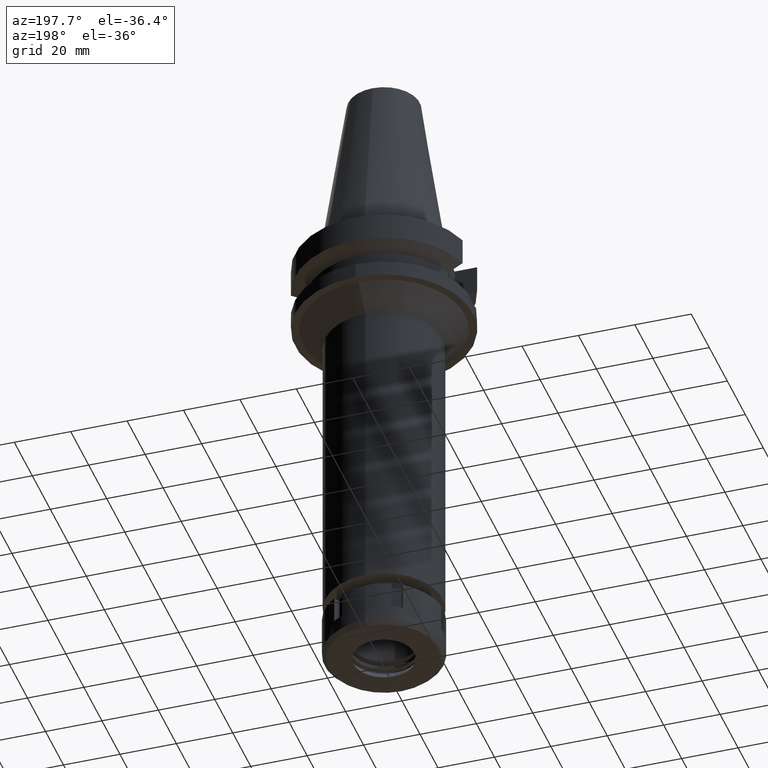
[diagram: clean part render]
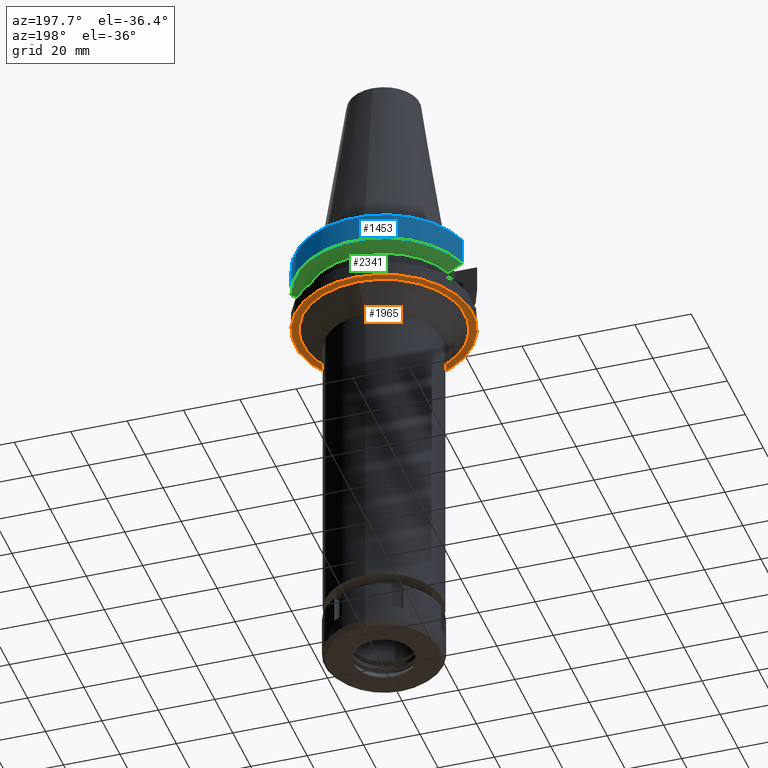
[diagram: same view with three faces highlighted in distinct colors, each labeled with its STEP entity id]
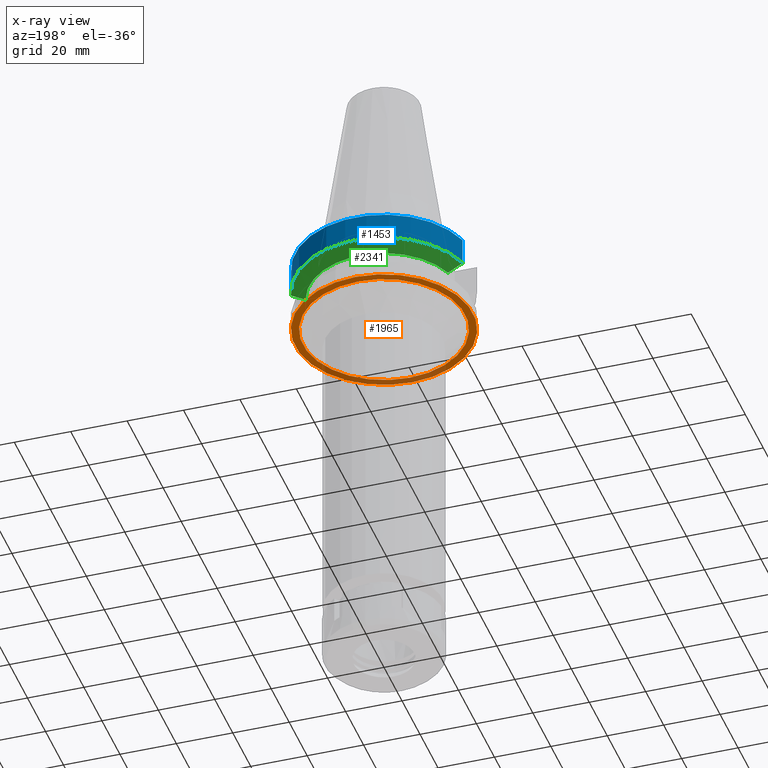
[diagram: x-ray of the same camera — body ghosted, the three highlighted faces saturated]
A machine part, auxiliary view with three faces highlighted in distinct colors.
The next image is the same camera in x-ray (body ghosted, the three faces saturated) — at least one of them is partly hidden behind the body in this view.
Their STEP definitions:

[orange] entity #1965 — the highlighted planar face has unit normal (0, 0, -1).
#101 = FACE_OUTER_BOUND ( 'NONE', #862, .T. ) ;
#291 = DIRECTION ( 'NONE',  ( 0.0000000000000000000, 1.000000000000000000, 0.0000000000000000000 ) ) ;
#306 = DIRECTION ( 'NONE',  ( 0.0000000000000000000, 0.0000000000000000000, -1.000000000000000000 ) ) ;
#309 = FACE_BOUND ( 'NONE', #562, .T. ) ;
#340 = AXIS2_PLACEMENT_3D ( 'NONE', #3331, #810, #1930 ) ;
#356 = EDGE_CURVE ( 'NONE', #2989, #950, #1204, .T. ) ;
#392 = CARTESIAN_POINT ( 'NONE',  ( 0.0000000000000000000, -28.75000000000000000, -27.00000000000000000 ) ) ;
#562 = EDGE_LOOP ( 'NONE', ( #3246, #3586 ) ) ;
#578 = VERTEX_POINT ( 'NONE', #2393 ) ;
#664 = EDGE_CURVE ( 'NONE', #947, #578, #2742, .T. ) ;
#810 = DIRECTION ( 'NONE',  ( 0.0000000000000000000, 0.0000000000000000000, 1.000000000000000000 ) ) ;
#862 = EDGE_LOOP ( 'NONE', ( #3364, #2735 ) ) ;
#947 = VERTEX_POINT ( 'NONE', #2908 ) ;
#950 = VERTEX_POINT ( 'NONE', #392 ) ;
#1003 = DIRECTION ( 'NONE',  ( 0.0000000000000000000, 0.0000000000000000000, 1.000000000000000000 ) ) ;
#1204 = CIRCLE ( 'NONE', #3266, 28.75000000000000000 ) ;
#1423 = CARTESIAN_POINT ( 'NONE',  ( 0.0000000000000000000, 0.0000000000000000000, -27.00000000000000000 ) ) ;
#1545 = CARTESIAN_POINT ( 'NONE',  ( 0.0000000000000000000, 2.161746529854999700E-14, -27.00000000000000000 ) ) ;
#1614 = EDGE_CURVE ( 'NONE', #950, #2989, #3337, .T. ) ;
#1681 = CARTESIAN_POINT ( 'NONE',  ( 0.0000000000000000000, 0.0000000000000000000, -27.00000000000000000 ) ) ;
#1743 = CIRCLE ( 'NONE', #340, 31.50000000000000000 ) ;
#1754 = EDGE_CURVE ( 'NONE', #578, #947, #1743, .T. ) ;
#1826 = CARTESIAN_POINT ( 'NONE',  ( 0.0000000000000000000, 28.75000000000000000, -27.00000000000000000 ) ) ;
#1925 = AXIS2_PLACEMENT_3D ( 'NONE', #2437, #3577, #2168 ) ;
#1930 = DIRECTION ( 'NONE',  ( 0.0000000000000000000, -1.000000000000000000, 0.0000000000000000000 ) ) ;
#1965 = ADVANCED_FACE ( 'NONE', ( #101, #309 ), #2846, .T. ) ;
#2168 = DIRECTION ( 'NONE',  ( 0.0000000000000000000, -1.000000000000000000, 0.0000000000000000000 ) ) ;
#2393 = CARTESIAN_POINT ( 'NONE',  ( 0.0000000000000000000, -31.50000000000000000, -27.00000000000000000 ) ) ;
#2437 = CARTESIAN_POINT ( 'NONE',  ( 0.0000000000000000000, 0.0000000000000000000, -27.00000000000000000 ) ) ;
#2448 = AXIS2_PLACEMENT_3D ( 'NONE', #1423, #2919, #3193 ) ;
#2735 = ORIENTED_EDGE ( 'NONE', *, *, #1754, .F. ) ;
#2742 = CIRCLE ( 'NONE', #3448, 31.50000000000000000 ) ;
#2846 = PLANE ( 'NONE',  #2448 ) ;
#2908 = CARTESIAN_POINT ( 'NONE',  ( 0.0000000000000000000, 31.50000000000000000, -27.00000000000000000 ) ) ;
#2919 = DIRECTION ( 'NONE',  ( 0.0000000000000000000, 0.0000000000000000000, -1.000000000000000000 ) ) ;
#2989 = VERTEX_POINT ( 'NONE', #1826 ) ;
#3193 = DIRECTION ( 'NONE',  ( 0.0000000000000000000, -1.000000000000000000, 0.0000000000000000000 ) ) ;
#3246 = ORIENTED_EDGE ( 'NONE', *, *, #356, .F. ) ;
#3266 = AXIS2_PLACEMENT_3D ( 'NONE', #1681, #306, #291 ) ;
#3331 = CARTESIAN_POINT ( 'NONE',  ( 0.0000000000000000000, 2.161746529854999700E-14, -27.00000000000000000 ) ) ;
#3337 = CIRCLE ( 'NONE', #1925, 28.75000000000000000 ) ;
#3364 = ORIENTED_EDGE ( 'NONE', *, *, #664, .F. ) ;
#3448 = AXIS2_PLACEMENT_3D ( 'NONE', #1545, #1003, #3549 ) ;
#3549 = DIRECTION ( 'NONE',  ( 0.0000000000000000000, 1.000000000000000000, 0.0000000000000000000 ) ) ;
#3577 = DIRECTION ( 'NONE',  ( 0.0000000000000000000, 0.0000000000000000000, -1.000000000000000000 ) ) ;
#3586 = ORIENTED_EDGE ( 'NONE', *, *, #1614, .F. ) ;

[blue] entity #1453 — the highlighted cylindrical surface (partial cylindrical patch) has radius 31.5 mm, axis along (0, 0, -1).
#1 = ORIENTED_EDGE ( 'NONE', *, *, #2590, .T. ) ;
#63 = CARTESIAN_POINT ( 'NONE',  ( 30.45402291365999758, 8.049999277899999583, -11.56551215646999964 ) ) ;
#125 = CARTESIAN_POINT ( 'NONE',  ( 30.45402291365999758, 8.049999277899999583, -11.56551215646999964 ) ) ;
#194 = DIRECTION ( 'NONE',  ( 0.0000000000000000000, 1.000000000000000000, 0.0000000000000000000 ) ) ;
#369 = CYLINDRICAL_SURFACE ( 'NONE', #2918, 31.50000000000000000 ) ;
#468 = CARTESIAN_POINT ( 'NONE',  ( 30.45402272279000044, 8.050000000000000711, -2.000000000000000000 ) ) ;
#506 = VECTOR ( 'NONE', #509, 999.9999999999998863 ) ;
#509 = DIRECTION ( 'NONE',  ( 1.145009674538999559E-07, 4.331689861748997914E-07, -0.9999999999998997469 ) ) ;
#655 = VERTEX_POINT ( 'NONE', #746 ) ;
#746 = CARTESIAN_POINT ( 'NONE',  ( -30.45402162752999686, 8.050004143464001061, -11.56546833011000075 ) ) ;
#837 = VERTEX_POINT ( 'NONE', #2930 ) ;
#941 = DIRECTION ( 'NONE',  ( 0.0000000000000000000, -1.000000000000000000, 0.0000000000000000000 ) ) ;
#998 = VERTEX_POINT ( 'NONE', #125 ) ;
#1020 = VERTEX_POINT ( 'NONE', #468 ) ;
#1266 = VECTOR ( 'NONE', #2303, 1000.000000000000227 ) ;
#1431 = EDGE_CURVE ( 'NONE', #998, #1020, #1466, .T. ) ;
#1453 = ADVANCED_FACE ( 'NONE', ( #1761 ), #369, .T. ) ;
#1466 = LINE ( 'NONE', #63, #1266 ) ;
#1582 = EDGE_CURVE ( 'NONE', #998, #655, #1628, .T. ) ;
#1628 = CIRCLE ( 'NONE', #3640, 31.50000000000000000 ) ;
#1761 = FACE_OUTER_BOUND ( 'NONE', #2065, .T. ) ;
#1864 = ORIENTED_EDGE ( 'NONE', *, *, #1431, .F. ) ;
#1870 = DIRECTION ( 'NONE',  ( 0.0000000000000000000, 0.0000000000000000000, -1.000000000000000000 ) ) ;
#2020 = CIRCLE ( 'NONE', #3382, 31.50000000000000000 ) ;
#2065 = EDGE_LOOP ( 'NONE', ( #2266, #1, #1864, #3565 ) ) ;
#2181 = CARTESIAN_POINT ( 'NONE',  ( 0.0000000000000000000, 2.161746529854999700E-14, -2.000000000000000000 ) ) ;
#2266 = ORIENTED_EDGE ( 'NONE', *, *, #3007, .F. ) ;
#2303 = DIRECTION ( 'NONE',  ( -1.995440244981989097E-08, 7.548993092068956305E-08, 0.9999999999999968914 ) ) ;
#2328 = CARTESIAN_POINT ( 'NONE',  ( 0.0000000000000000000, 2.161746529854999700E-14, 76.52000000000001023 ) ) ;
#2382 = DIRECTION ( 'NONE',  ( 0.0000000000000000000, 1.000000000000000000, 0.0000000000000000000 ) ) ;
#2590 = EDGE_CURVE ( 'NONE', #837, #1020, #2020, .T. ) ;
#2642 = CARTESIAN_POINT ( 'NONE',  ( 0.0000000000000000000, 1.065333950388000029E-14, -11.56550565266999975 ) ) ;
#2918 = AXIS2_PLACEMENT_3D ( 'NONE', #2328, #3464, #941 ) ;
#2930 = CARTESIAN_POINT ( 'NONE',  ( -30.45402272279000044, 8.050000000000000711, -2.000000000000000000 ) ) ;
#2944 = DIRECTION ( 'NONE',  ( 0.0000000000000000000, 0.0000000000000000000, 1.000000000000000000 ) ) ;
#3007 = EDGE_CURVE ( 'NONE', #837, #655, #3263, .T. ) ;
#3263 = LINE ( 'NONE', #3303, #506 ) ;
#3303 = CARTESIAN_POINT ( 'NONE',  ( -30.45402272279000044, 8.050000000000000711, -2.000000000000000000 ) ) ;
#3382 = AXIS2_PLACEMENT_3D ( 'NONE', #2181, #1870, #194 ) ;
#3464 = DIRECTION ( 'NONE',  ( 0.0000000000000000000, 0.0000000000000000000, -1.000000000000000000 ) ) ;
#3565 = ORIENTED_EDGE ( 'NONE', *, *, #1582, .T. ) ;
#3640 = AXIS2_PLACEMENT_3D ( 'NONE', #2642, #2944, #2382 ) ;

[green] entity #2341 — the highlighted conical surface has half-angle 60 deg.
#4 = EDGE_CURVE ( 'NONE', #3484, #2160, #743, .T. ) ;
#55 = B_SPLINE_CURVE_WITH_KNOTS ( 'NONE', 3,
 ( #3396, #3116, #317, #1432 ),
 .UNSPECIFIED., .F., .F.,
 ( 4, 4 ),
 ( 0.0000000000000000000, 1.000000000000000000 ),
 .UNSPECIFIED. ) ;
#125 = CARTESIAN_POINT ( 'NONE',  ( 30.45402291365999758, 8.049999277899999583, -11.56551215646999964 ) ) ;
#317 = CARTESIAN_POINT ( 'NONE',  ( -28.57295871603884052, 8.050008281890470130, -12.61547480226907147 ) ) ;
#326 = CARTESIAN_POINT ( 'NONE',  ( 25.24772413102000002, 8.049995416383998403, -14.45229202342000008 ) ) ;
#327 = AXIS2_PLACEMENT_3D ( 'NONE', #2231, #1127, #2485 ) ;
#655 = VERTEX_POINT ( 'NONE', #746 ) ;
#743 = CIRCLE ( 'NONE', #327, 26.50000000000000711 ) ;
#746 = CARTESIAN_POINT ( 'NONE',  ( -30.45402162752999686, 8.050004143464001061, -11.56546833011000075 ) ) ;
#817 = ORIENTED_EDGE ( 'NONE', *, *, #2299, .T. ) ;
#998 = VERTEX_POINT ( 'NONE', #125 ) ;
#1127 = DIRECTION ( 'NONE',  ( 0.0000000000000000000, 0.0000000000000000000, -1.000000000000000000 ) ) ;
#1142 = CARTESIAN_POINT ( 'NONE',  ( -25.24772216375000156, 8.050001586471001502, -14.45224487658000001 ) ) ;
#1172 = EDGE_LOOP ( 'NONE', ( #3079, #817, #3491, #1946 ) ) ;
#1432 = CARTESIAN_POINT ( 'NONE',  ( -30.45402162752999686, 8.050004143464001061, -11.56546833011000075 ) ) ;
#1462 = DIRECTION ( 'NONE',  ( 0.0000000000000000000, 0.0000000000000000000, 1.000000000000000000 ) ) ;
#1479 = CARTESIAN_POINT ( 'NONE',  ( 25.24772413102000002, 8.049995416383998403, -14.45229202342000008 ) ) ;
#1519 = CARTESIAN_POINT ( 'NONE',  ( 0.0000000000000000000, 1.065333950388000029E-14, -13.00888132564000088 ) ) ;
#1582 = EDGE_CURVE ( 'NONE', #998, #655, #1628, .T. ) ;
#1628 = CIRCLE ( 'NONE', #3640, 31.50000000000000000 ) ;
#1757 = DIRECTION ( 'NONE',  ( 0.0000000000000000000, 1.000000000000000000, 0.0000000000000000000 ) ) ;
#1946 = ORIENTED_EDGE ( 'NONE', *, *, #3490, .T. ) ;
#2160 = VERTEX_POINT ( 'NONE', #326 ) ;
#2231 = CARTESIAN_POINT ( 'NONE',  ( 0.0000000000000000000, 1.065333950388000029E-14, -14.45225699861000024 ) ) ;
#2298 = FACE_OUTER_BOUND ( 'NONE', #1172, .T. ) ;
#2299 = EDGE_CURVE ( 'NONE', #998, #2160, #3109, .T. ) ;
#2306 = CONICAL_SURFACE ( 'NONE', #2604, 29.00000000000000000, 1.047197551196400456 ) ;
#2341 = ADVANCED_FACE ( 'NONE', ( #2298 ), #2306, .T. ) ;
#2382 = DIRECTION ( 'NONE',  ( 0.0000000000000000000, 1.000000000000000000, 0.0000000000000000000 ) ) ;
#2485 = DIRECTION ( 'NONE',  ( -0.9527442516822307583, 0.3037735849057093818, 0.0000000000000000000 ) ) ;
#2604 = AXIS2_PLACEMENT_3D ( 'NONE', #1519, #1462, #1757 ) ;
#2642 = CARTESIAN_POINT ( 'NONE',  ( 0.0000000000000000000, 1.065333950388000029E-14, -11.56550565266999975 ) ) ;
#2920 = CARTESIAN_POINT ( 'NONE',  ( 26.83754616961824979, 8.049990822617145270, -13.57774887560565880 ) ) ;
#2944 = DIRECTION ( 'NONE',  ( 0.0000000000000000000, 0.0000000000000000000, 1.000000000000000000 ) ) ;
#3079 = ORIENTED_EDGE ( 'NONE', *, *, #1582, .F. ) ;
#3109 = B_SPLINE_CURVE_WITH_KNOTS ( 'NONE', 3,
 ( #3460, #3516, #2920, #1479 ),
 .UNSPECIFIED., .F., .F.,
 ( 4, 4 ),
 ( 0.0000000000000000000, 1.000000000000000000 ),
 .UNSPECIFIED. ) ;
#3116 = CARTESIAN_POINT ( 'NONE',  ( -26.83758148555827461, 8.050003176367949820, -13.57772735096166272 ) ) ;
#3396 = CARTESIAN_POINT ( 'NONE',  ( -25.24772216375000156, 8.050001586471001502, -14.45224487658000001 ) ) ;
#3460 = CARTESIAN_POINT ( 'NONE',  ( 30.45402291365999758, 8.049999277899999583, -11.56551215646999964 ) ) ;
#3484 = VERTEX_POINT ( 'NONE', #1142 ) ;
#3490 = EDGE_CURVE ( 'NONE', #3484, #655, #55, .T. ) ;
#3491 = ORIENTED_EDGE ( 'NONE', *, *, #4, .F. ) ;
#3516 = CARTESIAN_POINT ( 'NONE',  ( 28.57292329962934119, 8.049998556738891864, -12.61549605020568876 ) ) ;
#3640 = AXIS2_PLACEMENT_3D ( 'NONE', #2642, #2944, #2382 ) ;